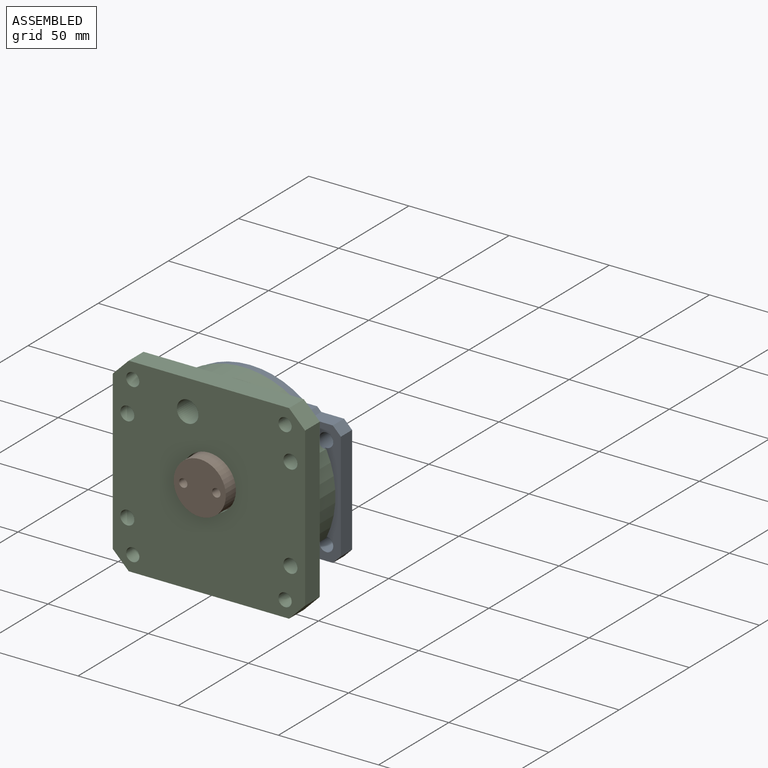
[diagram: assembled view]
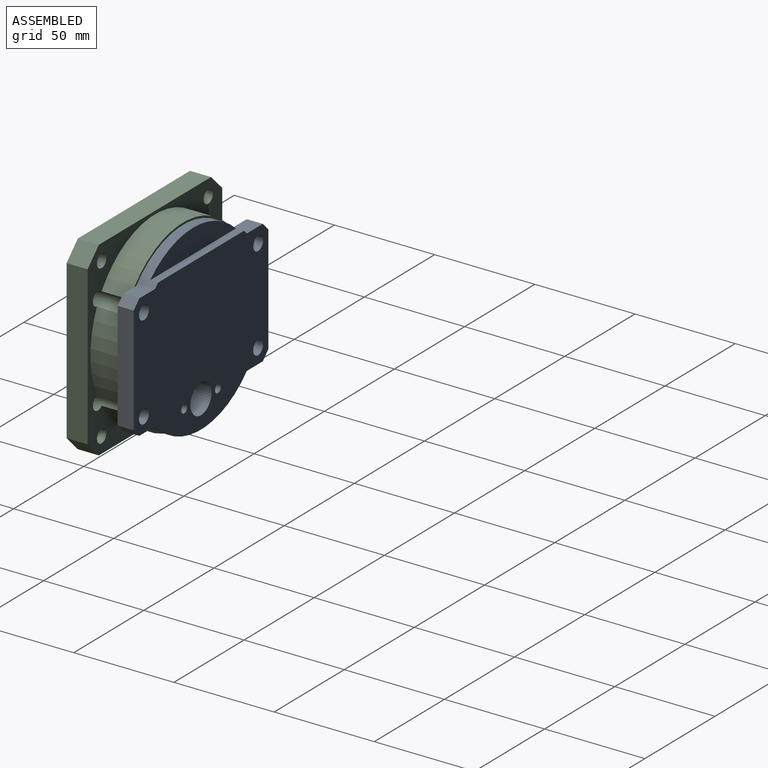
[diagram: assembled view, second angle]
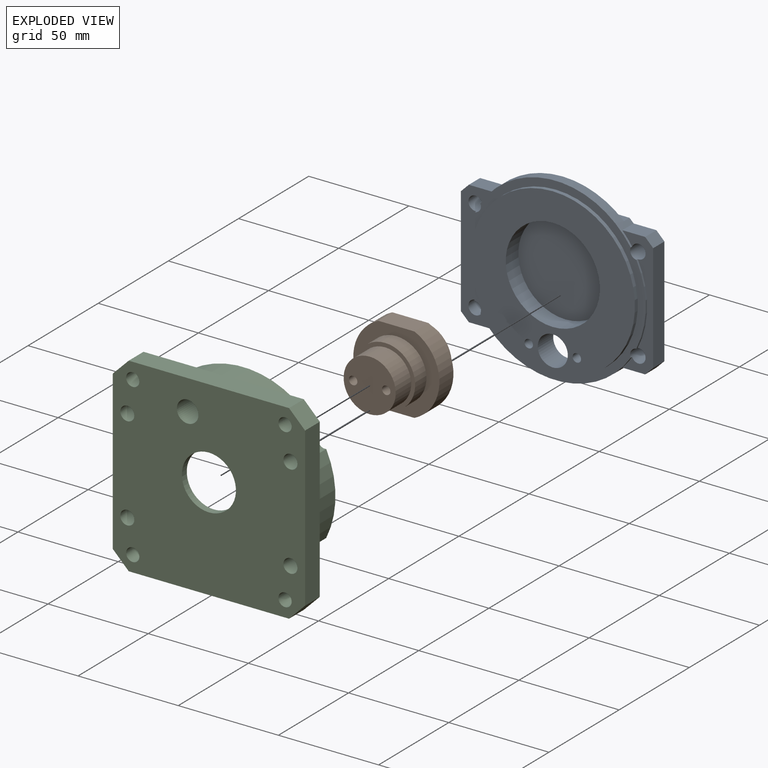
[diagram: exploded view]
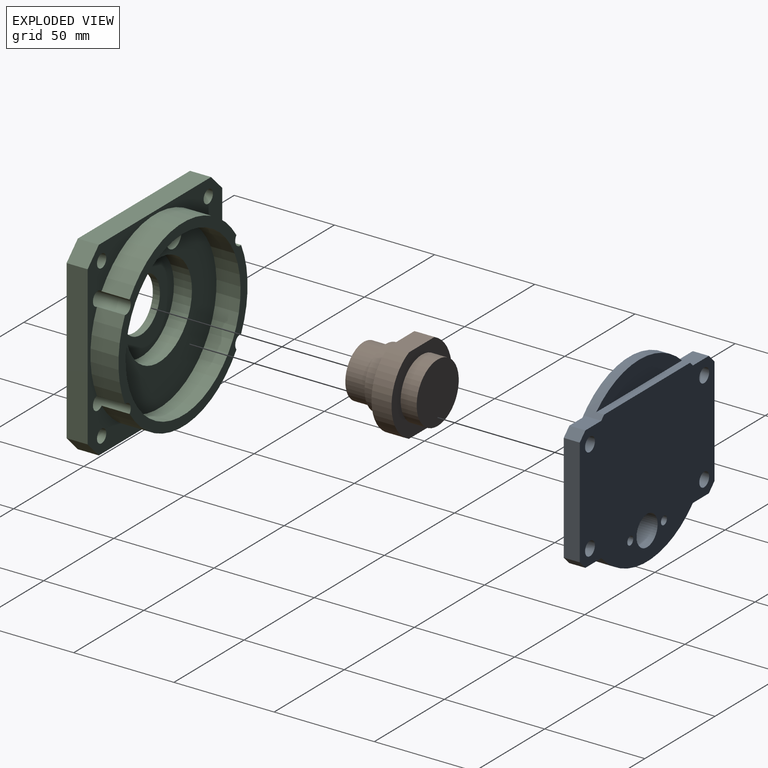
[diagram: exploded view, second angle]
ASSEMBLY  parts=3 mates=2
PART A: 31 faces, bbox 96x11x90 mm
  f0: cylinder r=45mm len=40.05mm, axis (0,-1,0), area 41.5mm2, adj f5,f10,f11,f15
  f1: cylinder r=45mm len=74.98mm, axis (0,-1,0), area 672.4mm2, adj f4,f5,f11,f13,f14,f15,f21,f23
  f2: cylinder r=45mm len=40.05mm, axis (0,-1,0), area 41.5mm2, adj f5,f12,f13,f14
  f3: cylinder r=45mm len=74.98mm, axis (0,-1,0), area 403.3mm2, adj f4,f5,f10,f11,f12,f13,f17,f18
  f4: plane 96x78mm, normal (0,1,0), area 6318.9mm2, adj f1,f3,f10,f12,f14,f15,f16,f17
  f5: plane 90x90mm, normal (0,-1,0), area 1057.2mm2, adj f0,f1,f2,f3,f6,f10,f12,f14
  f6: cylinder r=41mm len=82mm, axis (0,1,0), area 515.2mm2, adj f5,f7
  f7: plane 82x82mm, normal (0,-1,0), area 3341.6mm2, adj f6,f8,f16,f29,f30
  f8: cylinder r=23.5mm len=47mm, axis (0,-1,0), area 1328.9mm2, adj f7,f9
  f9: plane 47x47mm, normal (0,-1,0), area 1734.9mm2, adj f8
  f10: cylinder r=3.5mm len=9mm, axis (0,1,0), area 182.5mm2, adj f0,f3,f4,f5,f11
  f11: plane 62x15.38mm, normal (0,-1,0), area 344.7mm2, adj f0,f1,f3,f10,f15,f22,f23,f24
  f12: cylinder r=3.5mm len=9mm, axis (0,1,0), area 182.5mm2, adj f2,f3,f4,f5,f13
  f13: plane 62x15.38mm, normal (0,-1,0), area 344.7mm2, adj f1,f2,f3,f12,f14,f19,f20,f21
  f14: cylinder r=3.5mm len=9mm, axis (0,1,0), area 182.5mm2, adj f1,f2,f4,f5,f13
  f15: cylinder r=3.5mm len=9mm, axis (0,1,0), area 182.5mm2, adj f0,f1,f4,f5,f11
  f16: cylinder r=7.5mm len=15mm, axis (0,1,0), area 518.4mm2, adj f4,f7
  f17: plane 61.19x4mm, normal (0,0,1), area 244.8mm2, adj f3,f4,f18
  f18: plane 61.19x12mm, normal (0,1,0), area 504.3mm2, adj f3,f17
  f19: plane 11.38x8mm, normal (0,0,1), area 91mm2, adj f3,f4,f13,f27
  f20: plane 54x8mm, normal (1,0,0), area 432mm2, adj f4,f13,f25,f27
  f21: plane 11.38x8mm, normal (0,0,-1), area 91mm2, adj f1,f4,f13,f25
  f22: plane 11.38x8mm, normal (0,0,1), area 91mm2, adj f3,f4,f11,f28
  f23: plane 11.38x8mm, normal (0,0,-1), area 91mm2, adj f1,f4,f11,f26
  f24: plane 54x8mm, normal (-1,0,0), area 432mm2, adj f4,f11,f26,f28
  f25: plane 8x4mm, normal (0.71,0,-0.71), area 45.3mm2, adj f4,f13,f20,f21
  f26: plane 8x4mm, normal (-0.71,0,-0.71), area 45.3mm2, adj f4,f11,f23,f24
  f27: plane 8x4mm, normal (0.71,0,0.71), area 45.3mm2, adj f4,f13,f19,f20
  f28: plane 8x4mm, normal (-0.71,0,0.71), area 45.3mm2, adj f4,f11,f22,f24
  f29: cylinder r=2.1mm len=11mm, axis (0,1,0), area 145.1mm2, adj f4,f7
  f30: cylinder r=2.1mm len=11mm, axis (0,1,0), area 145.1mm2, adj f4,f7
PART B: 16 faces, bbox 43x37x39 mm
  f0: plane 43x39mm, normal (0,1,0), area 696.6mm2, adj f1,f4,f5,f10,f11
  f1: cylinder r=21.5mm len=39mm, axis (0,-1,0), area 488.5mm2, adj f0,f2,f10,f11
  f2: plane 43x39mm, normal (0,-1,0), area 696.6mm2, adj f1,f5,f6,f10,f11
  f3: plane 30x30mm, normal (0,1,0), area 706.9mm2, adj f4
  f4: cylinder r=15mm len=30mm, axis (0,-1,0), area 754mm2, adj f0,f3
  f5: cylinder r=21.5mm len=39mm, axis (0,-1,0), area 488.5mm2, adj f0,f2,f10,f11
  f6: cylinder r=15mm len=30mm, axis (0,-1,0), area 754mm2, adj f2,f7
  f7: plane 30x30mm, normal (0,-1,0), area 175.9mm2, adj f6,f8
  f8: cylinder r=13mm len=26mm, axis (0,-1,0), area 898.5mm2, adj f7,f9
  f9: plane 26x26mm, normal (0,-1,0), area 503.2mm2, adj f8,f13,f15
  f10: plane 18.11x10mm, normal (0,0,-1), area 181.1mm2, adj f0,f1,f2,f5
  f11: plane 18.11x10mm, normal (0,0,1), area 181.1mm2, adj f0,f1,f2,f5
  f12: cone r=0mm half-angle=59deg, axis (0,-1,0), area 16.2mm2, adj f13
  f13: cylinder r=2.1mm len=14.4mm, axis (0,-1,0), area 190mm2, adj f9,f12
  f14: cone r=0mm half-angle=59deg, axis (0,-1,0), area 16.2mm2, adj f15
  f15: cylinder r=2.1mm len=14.4mm, axis (0,-1,0), area 190mm2, adj f9,f14
PART C: 29 faces, bbox 96x24.5x95 mm
  f0: cylinder r=46mm len=76.15mm, axis (0,1,0), area 1255.9mm2, adj f4,f5,f21,f24
  f1: cylinder r=46mm len=76.15mm, axis (0,1,0), area 1255.9mm2, adj f4,f5,f22,f23
  f2: cylinder r=46mm len=40.14mm, axis (0,1,0), area 581.5mm2, adj f4,f5,f21,f23
  f3: cylinder r=46mm len=40.14mm, axis (0,1,0), area 581.5mm2, adj f4,f5,f22,f24
  f4: plane 96x95mm, normal (0,1,0), area 2101.9mm2, adj f0,f1,f2,f3,f13,f14,f15,f16
  f5: plane 92x92mm, normal (0,1,0), area 1318.3mm2, adj f0,f1,f2,f3,f9,f21,f22,f23
  f6: plane 96x95mm, normal (0,-1,0), area 8037.1mm2, adj f7,f8,f13,f14,f15,f16,f17,f18
  f7: cylinder r=13.5mm len=27mm, axis (0,-1,0), area 296.9mm2, adj f6,f11
  f8: cylinder r=5.4mm len=12.5mm, axis (0,-1,0), area 424.1mm2, adj f6,f10
  f9: cylinder r=41mm len=82mm, axis (0,1,0), area 3091.3mm2, adj f5,f10
  f10: plane 82x82mm, normal (0,1,0), area 3454.5mm2, adj f8,f9,f12
  f11: plane 47x47mm, normal (0,1,0), area 1162.4mm2, adj f7,f12
  f12: cylinder r=23.5mm len=47mm, axis (0,1,0), area 1328.9mm2, adj f10,f11
  f13: plane 80x10.5mm, normal (0,0,1), area 840mm2, adj f4,f6,f26,f28
  f14: plane 79x10.5mm, normal (-1,0,0), area 829.5mm2, adj f4,f6,f25,f26
  f15: plane 80x10.5mm, normal (0,0,-1), area 840mm2, adj f4,f6,f25,f27
  f16: plane 79x10.5mm, normal (1,0,0), area 829.5mm2, adj f4,f6,f27,f28
  f17: cylinder r=3.3mm len=10.5mm, axis (0,1,0), area 217.7mm2, adj f4,f6
  f18: cylinder r=3.3mm len=10.5mm, axis (0,1,0), area 217.7mm2, adj f4,f6
  f19: cylinder r=3.3mm len=10.5mm, axis (0,1,0), area 217.7mm2, adj f4,f6
  f20: cylinder r=3.3mm len=10.5mm, axis (0,1,0), area 217.7mm2, adj f4,f6
  f21: cylinder r=3.5mm len=24.5mm, axis (0,1,0), area 352.9mm2, adj f0,f2,f4,f5,f6
  f22: cylinder r=3.5mm len=24.5mm, axis (0,1,0), area 352.9mm2, adj f1,f3,f4,f5,f6
  f23: cylinder r=3.5mm len=24.5mm, axis (0,1,0), area 352.9mm2, adj f1,f2,f4,f5,f6
  f24: cylinder r=3.5mm len=24.5mm, axis (0,1,0), area 352.9mm2, adj f0,f3,f4,f5,f6
  f25: plane 10.5x8mm, normal (-0.71,0,-0.71), area 118.8mm2, adj f4,f6,f14,f15
  f26: plane 10.5x8mm, normal (-0.71,0,0.71), area 118.8mm2, adj f4,f6,f13,f14
  f27: plane 10.5x8mm, normal (0.71,0,-0.71), area 118.8mm2, adj f4,f6,f15,f16
  f28: plane 10.5x8mm, normal (0.71,0,0.71), area 118.8mm2, adj f4,f6,f13,f16
PLACE A t=(1.53,-34.42,-0.07)mm
PLACE B t=(1.53,121.58,3.18)mm
PLACE C t=(1.53,11.58,-0.07)mm fixed
MATE fastened B.f1 <-> C.f12  axis (0,-1,0) through (1.53,3.58,3.18)mm
MATE fastened A.f6 <-> C.f9  axis (0,-1,0) through (1.53,15.58,-0.07)mm
